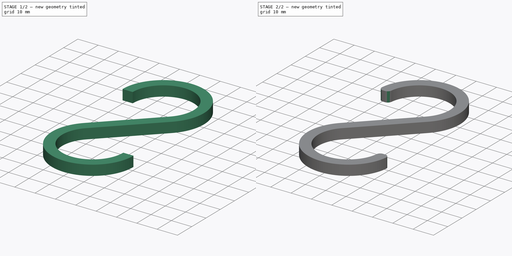
[diagram: build sequence overview — one tinted view per stage of 2, left to right]
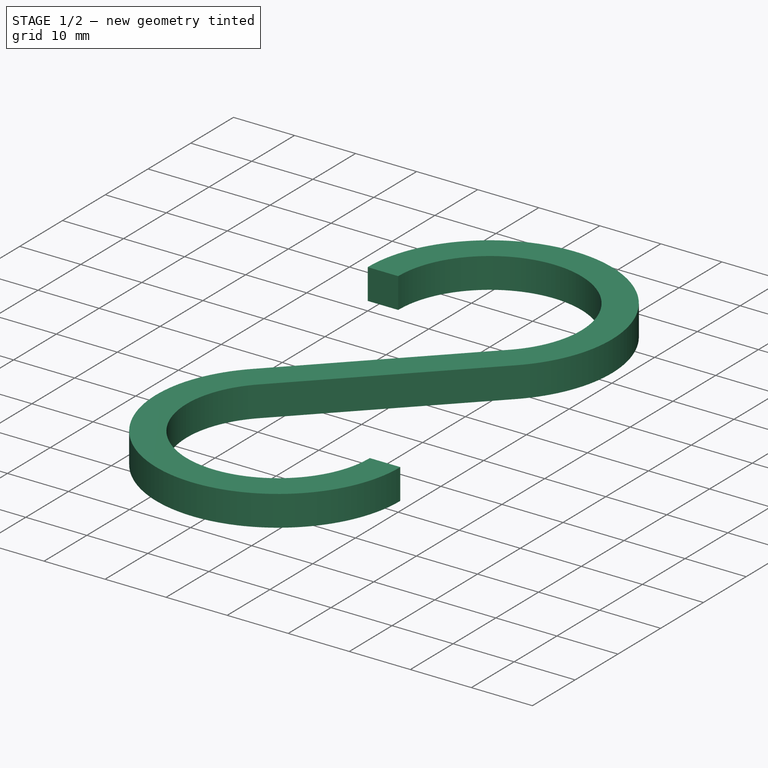
[diagram: stage 1 of 2 — iso view after this stage's code; geometry added in this stage tinted green]
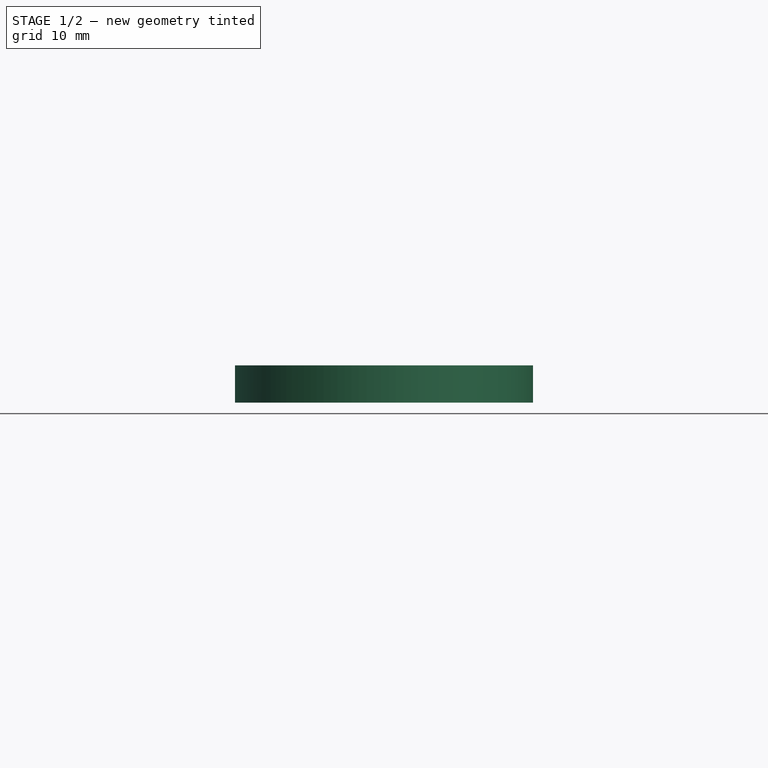
[diagram: stage 1 of 2 — front view after this stage's code; geometry added in this stage tinted green]
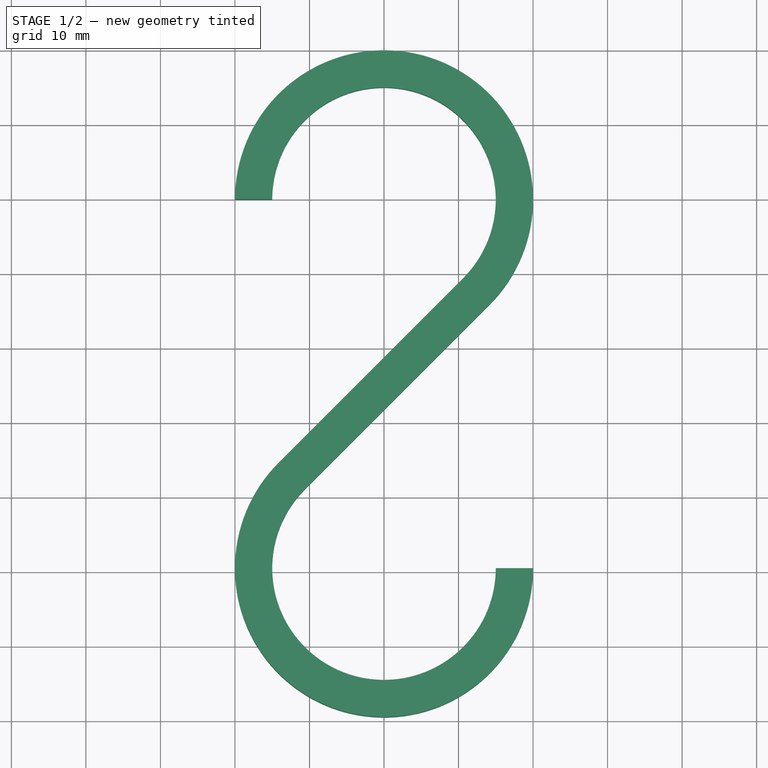
[diagram: stage 1 of 2 — top view after this stage's code; geometry added in this stage tinted green]
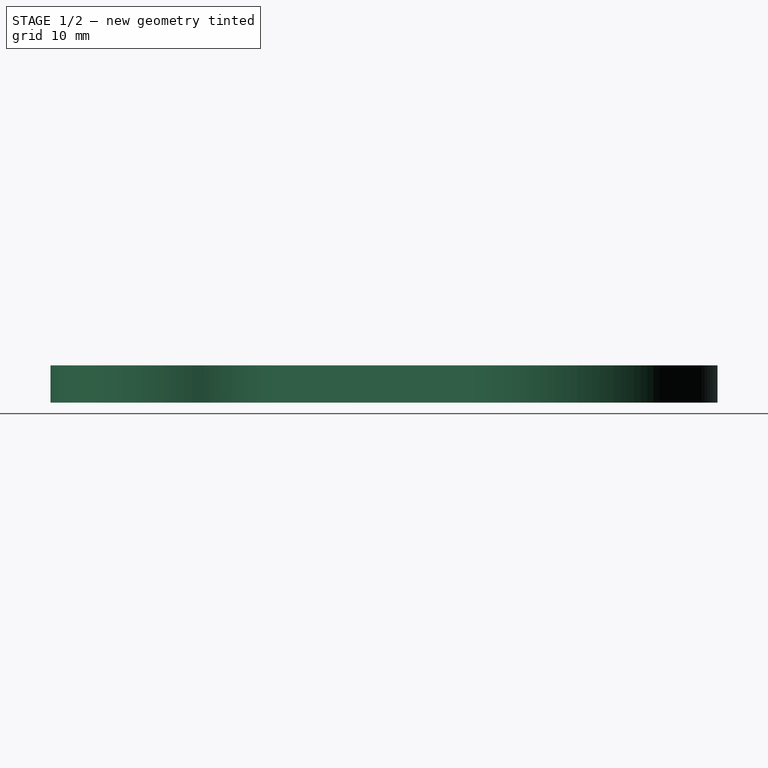
[diagram: stage 1 of 2 — right view after this stage's code; geometry added in this stage tinted green]
FCSTD DOCUMENT  (FreeCAD 0.20R29603 (Git))
Label: double-hook
License: All rights reserved
LicenseURL: http://en.wikipedia.org/wiki/All_rights_reserved
objects: Sketcher::SketchObject×1, PartDesign::Pad×1, PartDesign::Fillet×1, PartDesign::Body×1
note: 6 computed .brp shape members not serialized (recipe doc carries the construction recipe); baked Part::Feature solids carry a one-line shape summary decoded from their .brp

FEATURE [Sketcher::SketchObject] Sketch
  FullyConstrained = true
  MapMode = 5
  Support = -> [XY_Plane]
  sketch-geometry (11):
    g0: ArcOfCircle CenterX=0 CenterY=0 CenterZ=0 NormalX=0 NormalY=0 NormalZ=1 AngleXU=0 Radius=15 StartAngle=5.49779 EndAngle=9.42478
    g1: ArcOfCircle CenterX=0 CenterY=0 CenterZ=0 NormalX=0 NormalY=0 NormalZ=1 AngleXU=0 Radius=20 StartAngle=5.49779 EndAngle=9.42478
    g2: ArcOfCircle CenterX=0 CenterY=-49.4975 CenterZ=0 NormalX=0 NormalY=0 NormalZ=1 AngleXU=0 Radius=20 StartAngle=2.35619 EndAngle=6.28319
    g3: LineSegment StartX=10.6066 StartY=-10.6066 StartZ=0 EndX=-14.1421 EndY=-35.3553 EndZ=0
    g4: ArcOfCircle CenterX=0 CenterY=-49.4975 CenterZ=0 NormalX=0 NormalY=0 NormalZ=1 AngleXU=0 Radius=15 StartAngle=2.35619 EndAngle=6.28319
    g5: LineSegment StartX=14.1421 StartY=-14.1421 StartZ=0 EndX=-10.6066 EndY=-38.8909 EndZ=0
    g6: LineSegment StartX=15 StartY=-49.4975 StartZ=0 EndX=20 EndY=-49.4975 EndZ=0
    g7: LineSegment StartX=-20 StartY=7.3e-15 StartZ=0 EndX=-15 EndY=0 EndZ=0
    g8: LineSegment StartX=0 StartY=-49.4975 StartZ=0 EndX=20 EndY=-49.4975 EndZ=0
    g9: LineSegment StartX=0 StartY=0 StartZ=0 EndX=14.1421 EndY=-14.1421 EndZ=0
    g10: LineSegment StartX=0 StartY=-49.4975 StartZ=0 EndX=-14.1421 EndY=-35.3553 EndZ=0
  constraints (31):
    c: Coincident(g0,g-1)
    c: PointOnObject(g0,g-1)
    c: Coincident(g1,g0)
    c: PointOnObject(g1,g-1)
    c: PointOnObject(g2,g-2)
    c: Coincident(g3,g0)
    c: Coincident(g3,g2)
    c: Coincident(g4,g2)
    c: Coincident(g5,g1)
    c: Coincident(g5,g4)
    c: Coincident(g6,g4)
    c: Coincident(g6,g2)
    c: Coincident(g7,g1)
    c: Coincident(g7,g0)
    c: Coincident(g8,g2)
    c: Coincident(g8,g2)
    c: Horizontal(g8)
    c: Coincident(g9,g0)
    c: Coincident(g9,g1)
    c: Coincident(g10,g2)
    c: Coincident(g10,g2)
    c: PointOnObject(g0,g9)
    c: PointOnObject(g4,g8)
    c: PointOnObject(g4,g10)
    c: Perpendicular(g3,g9)
    c: Perpendicular(g5,g9)
    c: Radius(g0) = 15
    c: Distance(g7) = 5
    c: Angle(g1) = 3.92699
    c: Perpendicular(g3,g10)
    c: Radius(g4) = 15
FEATURE [PartDesign::Pad] Pad
  Direction = (0,0,1)
  Length = 5
  Length2 = 10
  Profile = -> Sketch
  ReferenceAxis = -> Sketch [N_Axis]
  Type = 0
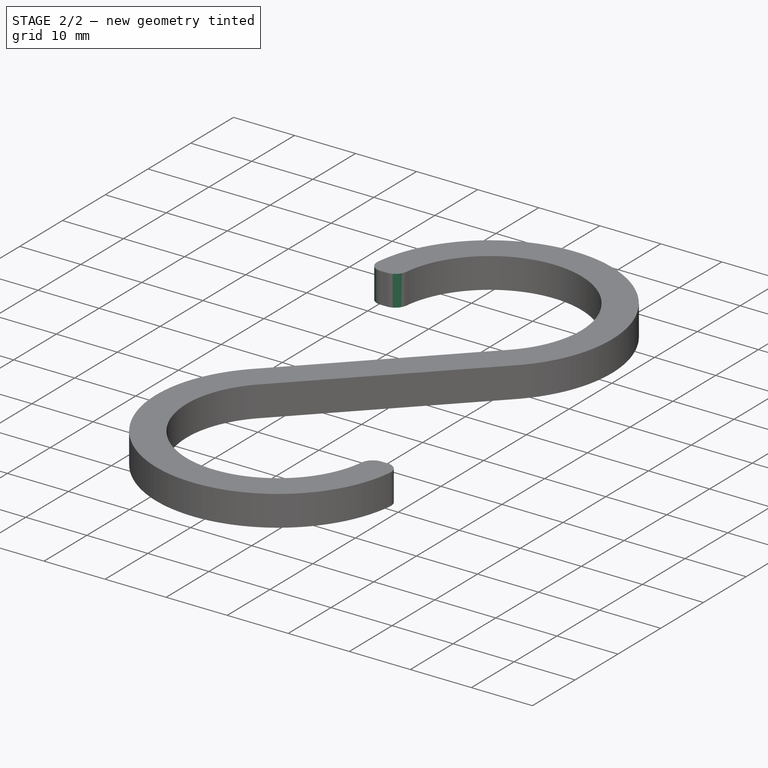
[diagram: stage 2 of 2 — iso view after this stage's code; geometry added in this stage tinted green]
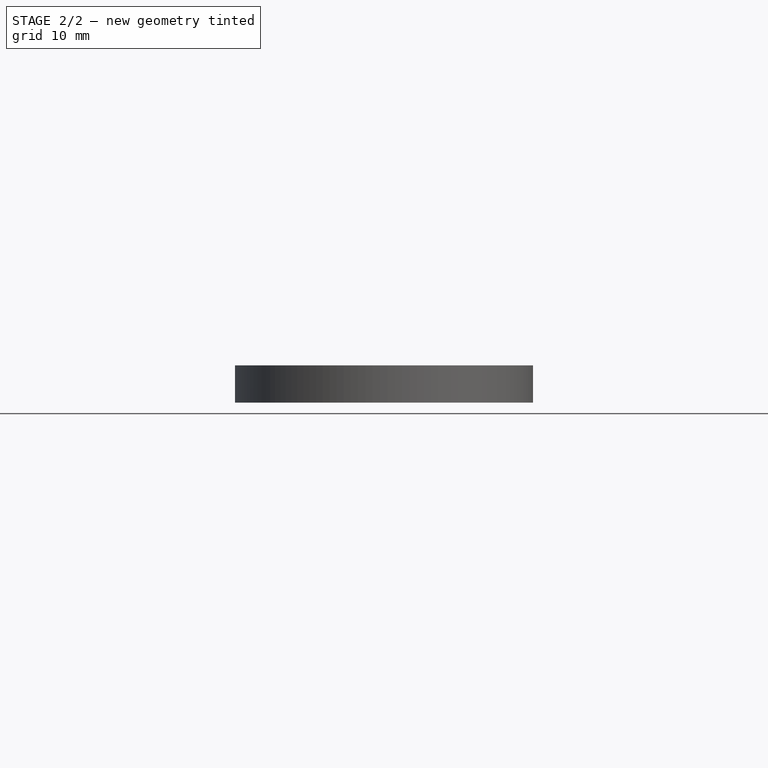
[diagram: stage 2 of 2 — front view after this stage's code; geometry added in this stage tinted green]
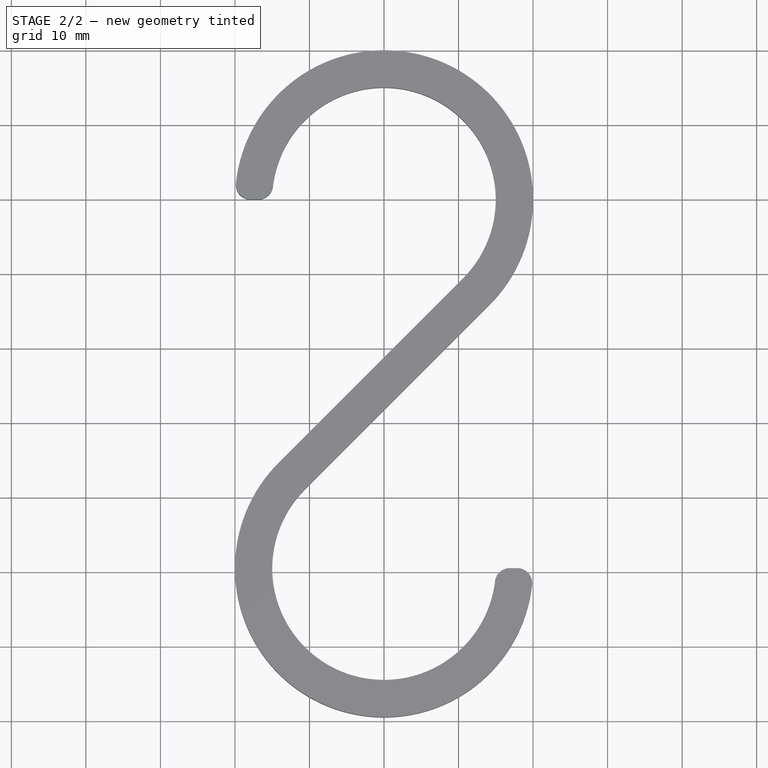
[diagram: stage 2 of 2 — top view after this stage's code; geometry added in this stage tinted green]
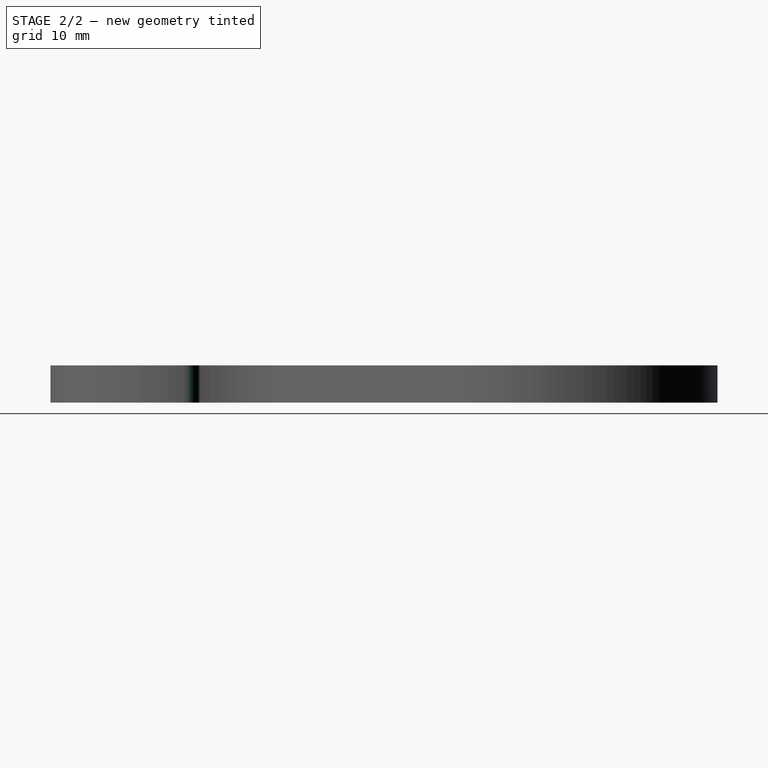
[diagram: stage 2 of 2 — right view after this stage's code; geometry added in this stage tinted green]
FEATURE [PartDesign::Fillet] Fillet
  Base = -> Pad [Edge5,Edge8,Edge20,Edge17]
  BaseFeature = -> Pad
  Radius = 2
  SupportTransform = false
  UseAllEdges = false
FEATURE [PartDesign::Body] Body
  Group = -> [Sketch,Pad,Fillet]
  Origin = -> Origin
  Tip = -> Fillet
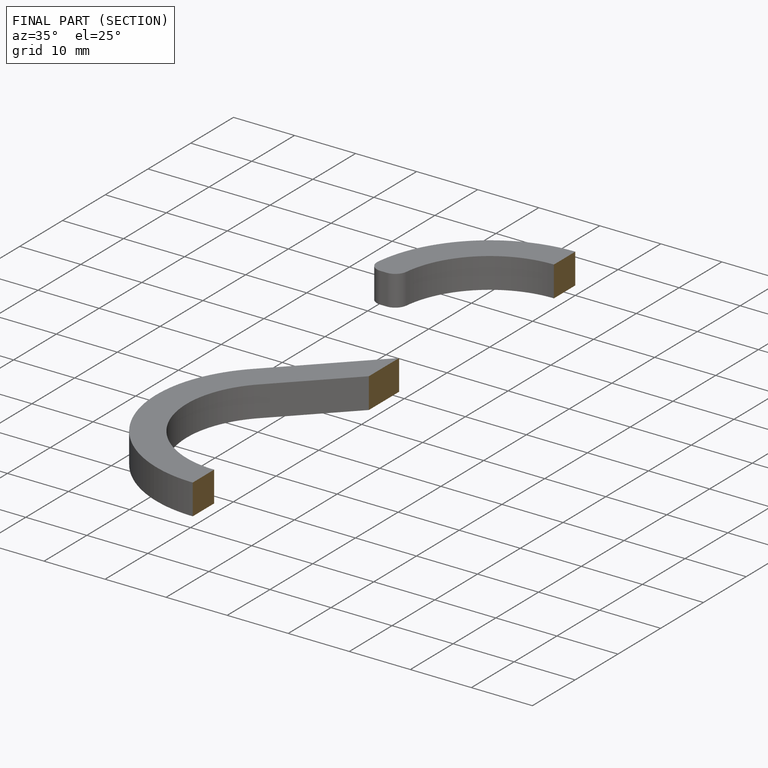
[diagram: finished part — half-section view (interior)]
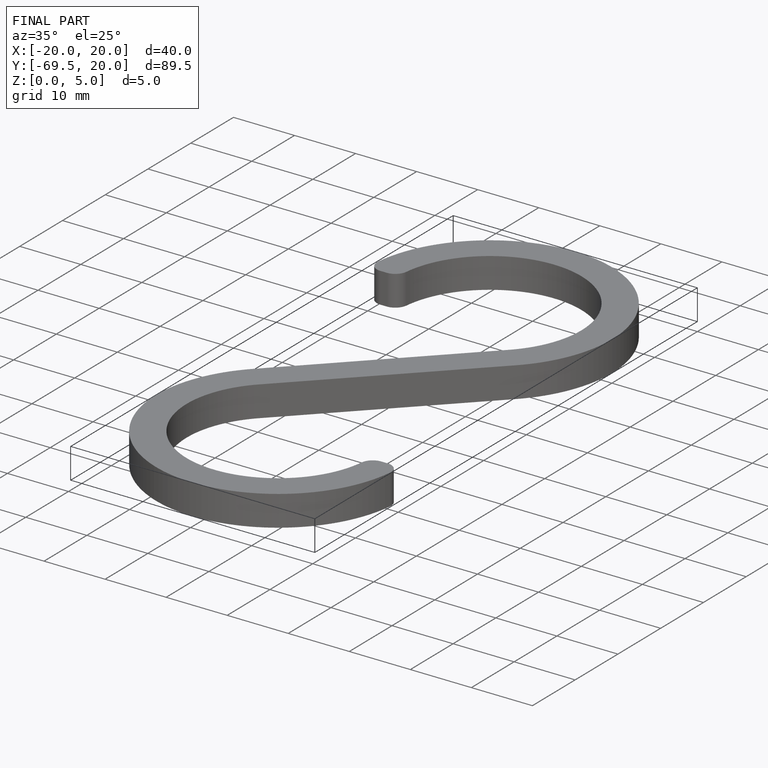
[diagram: finished part — iso view with bounding-box wireframe]
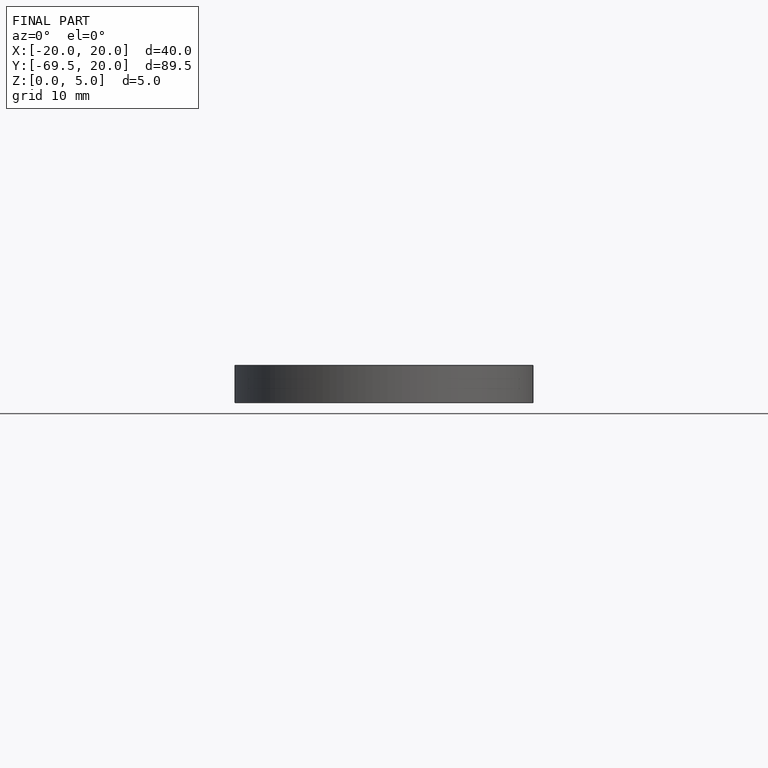
[diagram: finished part — front view with bounding-box wireframe]
